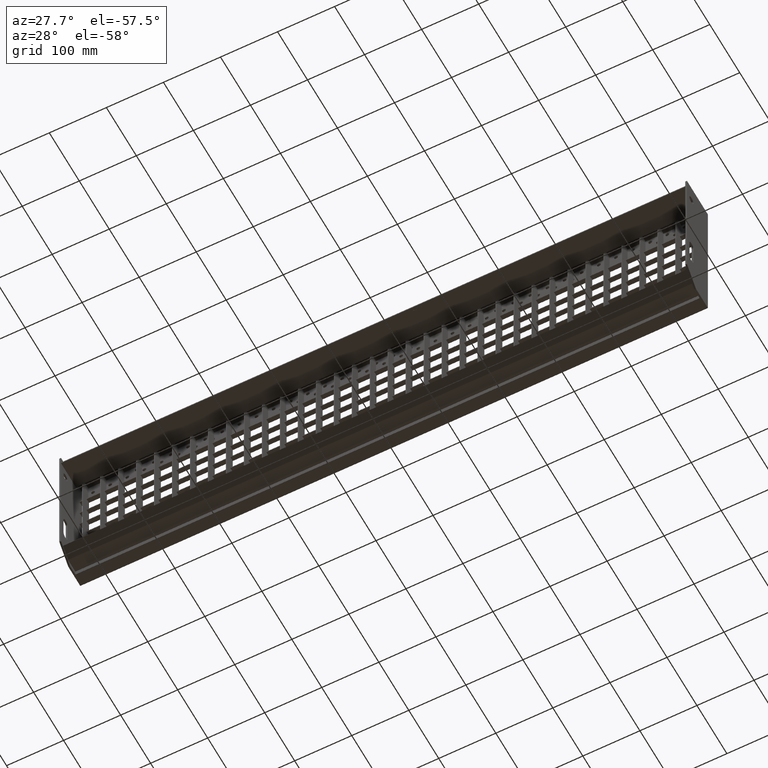
[diagram: clean part render]
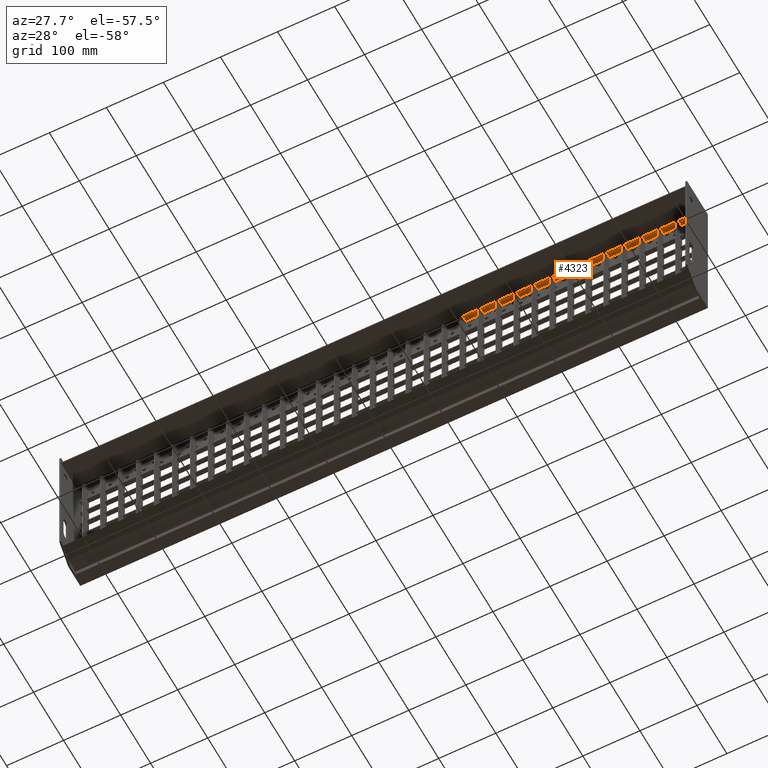
[diagram: same view with one face highlighted and labeled with its STEP entity id]
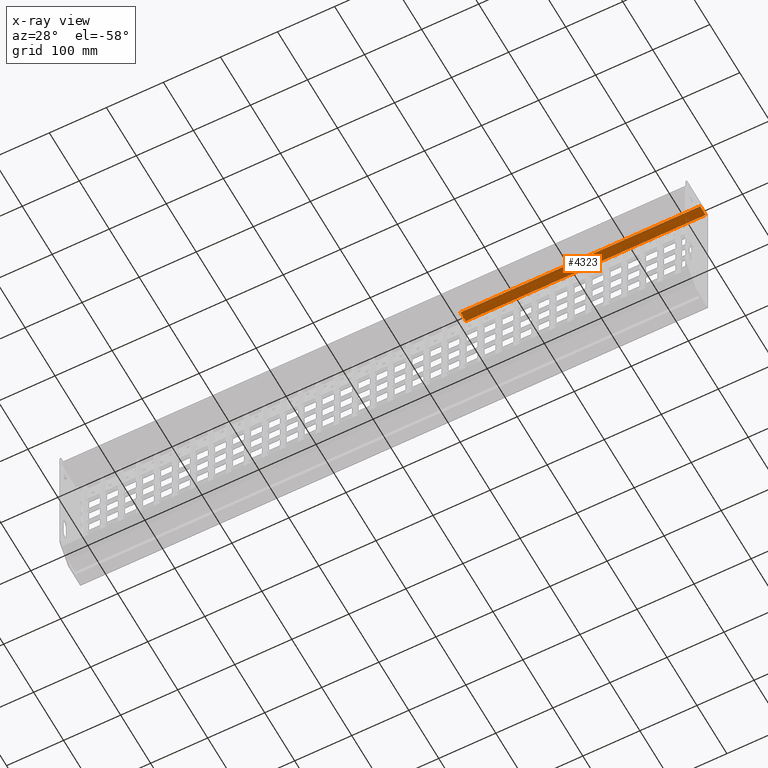
[diagram: x-ray of the same camera — body ghosted, the highlighted face saturated]
A machine part, auxiliary view. The second image highlights one B-rep face of the part: STEP entity #4323.
The next image is the same camera in x-ray: the body ghosted, the highlighted face saturated — about 1% of this face is hidden behind the body in this view.
In plain terms, the highlighted planar face has unit normal (0, 0, 1).
Its self-contained STEP definition (entity closure, byte-faithful):
#720 = VERTEX_POINT ( 'NONE', #14635 ) ;
#745 = VERTEX_POINT ( 'NONE', #2079 ) ;
#2079 = CARTESIAN_POINT ( 'NONE',  ( 547.0000000000000000, 50.00000000000011400, -1.999999999999997800 ) ) ;
#2975 = CARTESIAN_POINT ( 'NONE',  ( 126.7500000000000000, 68.00000000000000000, -1.999999999999991300 ) ) ;
#3191 = PLANE ( 'NONE',  #30935 ) ;
#3207 = ORIENTED_EDGE ( 'NONE', *, *, #33504, .T. ) ;
#3404 = LINE ( 'NONE', #27971, #13106 ) ;
#3546 = CARTESIAN_POINT ( 'NONE',  ( 547.0000000000000000, 68.00000000000000000, -2.000000000000001800 ) ) ;
#3778 = DIRECTION ( 'NONE',  ( 1.000000000000000000, -0.0000000000000000000, -0.0000000000000000000 ) ) ;
#4323 = ADVANCED_FACE ( 'NONE', ( #23033 ), #3191, .F. ) ;
#4826 = DIRECTION ( 'NONE',  ( 0.0000000000000000000, -1.000000000000000000, -1.204669080539449300E-016 ) ) ;
#8479 = DIRECTION ( 'NONE',  ( 0.0000000000000000000, -1.000000000000000000, 2.168404344971021900E-016 ) ) ;
#9840 = EDGE_LOOP ( 'NONE', ( #29267, #20546, #3207, #13490 ) ) ;
#10025 = CARTESIAN_POINT ( 'NONE',  ( 547.0000000000000000, 68.00000000000000000, -2.000000000000001800 ) ) ;
#11302 = CARTESIAN_POINT ( 'NONE',  ( -623.1577310586392300, 68.00000000000000000, -2.000000000000001800 ) ) ;
#11464 = CARTESIAN_POINT ( 'NONE',  ( -623.1577310586392300, 68.00000000000000000, -2.000000000000001800 ) ) ;
#12687 = LINE ( 'NONE', #11464, #29027 ) ;
#12965 = EDGE_CURVE ( 'NONE', #30814, #745, #13072, .T. ) ;
#13072 = LINE ( 'NONE', #10025, #31946 ) ;
#13106 = VECTOR ( 'NONE', #3778, 1000.000000000000000 ) ;
#13490 = ORIENTED_EDGE ( 'NONE', *, *, #12965, .T. ) ;
#13928 = DIRECTION ( 'NONE',  ( 1.000000000000000000, -0.0000000000000000000, -0.0000000000000000000 ) ) ;
#14635 = CARTESIAN_POINT ( 'NONE',  ( 126.7500000000000000, 50.00000000000000000, -1.999999999999993600 ) ) ;
#16487 = DIRECTION ( 'NONE',  ( 0.0000000000000000000, 2.168404344971021900E-016, 1.000000000000000000 ) ) ;
#16803 = EDGE_CURVE ( 'NONE', #34824, #720, #20397, .T. ) ;
#18397 = DIRECTION ( 'NONE',  ( 0.0000000000000000000, -1.000000000000000000, 2.168404344971021900E-016 ) ) ;
#20397 = LINE ( 'NONE', #21422, #21630 ) ;
#20546 = ORIENTED_EDGE ( 'NONE', *, *, #16803, .F. ) ;
#21422 = CARTESIAN_POINT ( 'NONE',  ( 126.7500000000000000, 68.00000000000000000, -1.999999999999991300 ) ) ;
#21630 = VECTOR ( 'NONE', #4826, 1000.000000000000000 ) ;
#23033 = FACE_OUTER_BOUND ( 'NONE', #9840, .T. ) ;
#27971 = CARTESIAN_POINT ( 'NONE',  ( -623.1577310586392300, 50.00000000000011400, -1.999999999999997800 ) ) ;
#29027 = VECTOR ( 'NONE', #13928, 1000.000000000000000 ) ;
#29267 = ORIENTED_EDGE ( 'NONE', *, *, #30784, .F. ) ;
#30784 = EDGE_CURVE ( 'NONE', #720, #745, #3404, .T. ) ;
#30814 = VERTEX_POINT ( 'NONE', #3546 ) ;
#30935 = AXIS2_PLACEMENT_3D ( 'NONE', #11302, #16487, #8479 ) ;
#31946 = VECTOR ( 'NONE', #18397, 1000.000000000000000 ) ;
#33504 = EDGE_CURVE ( 'NONE', #34824, #30814, #12687, .T. ) ;
#34824 = VERTEX_POINT ( 'NONE', #2975 ) ;